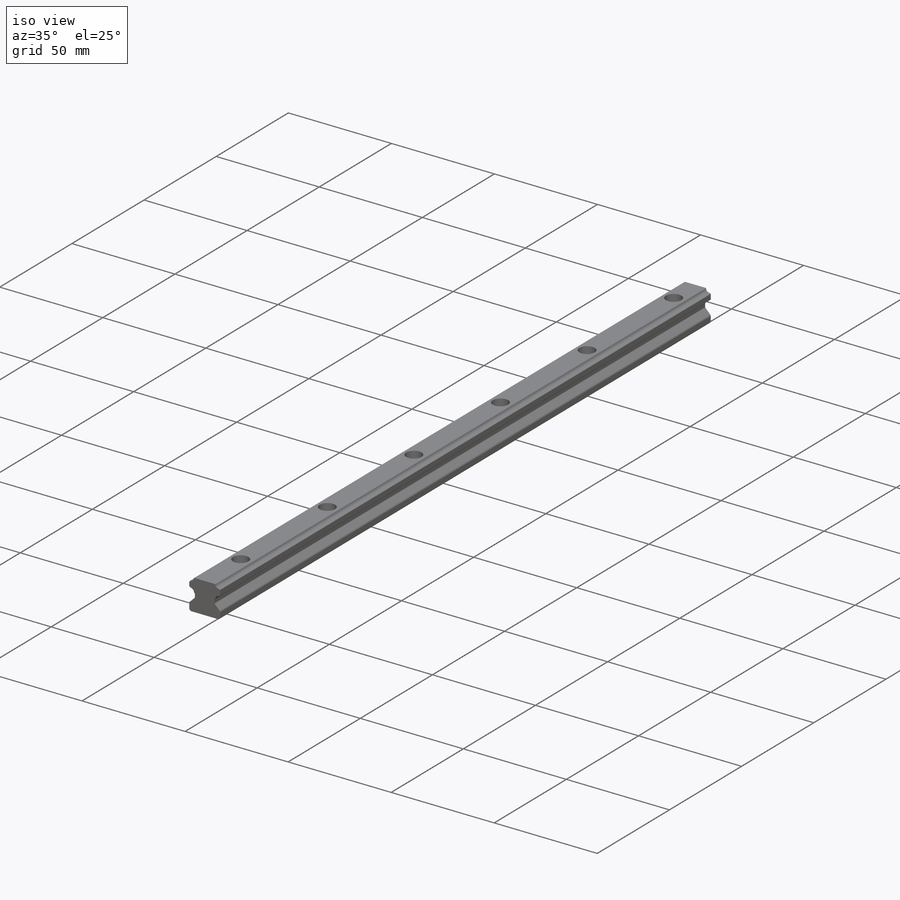
[diagram: iso view]
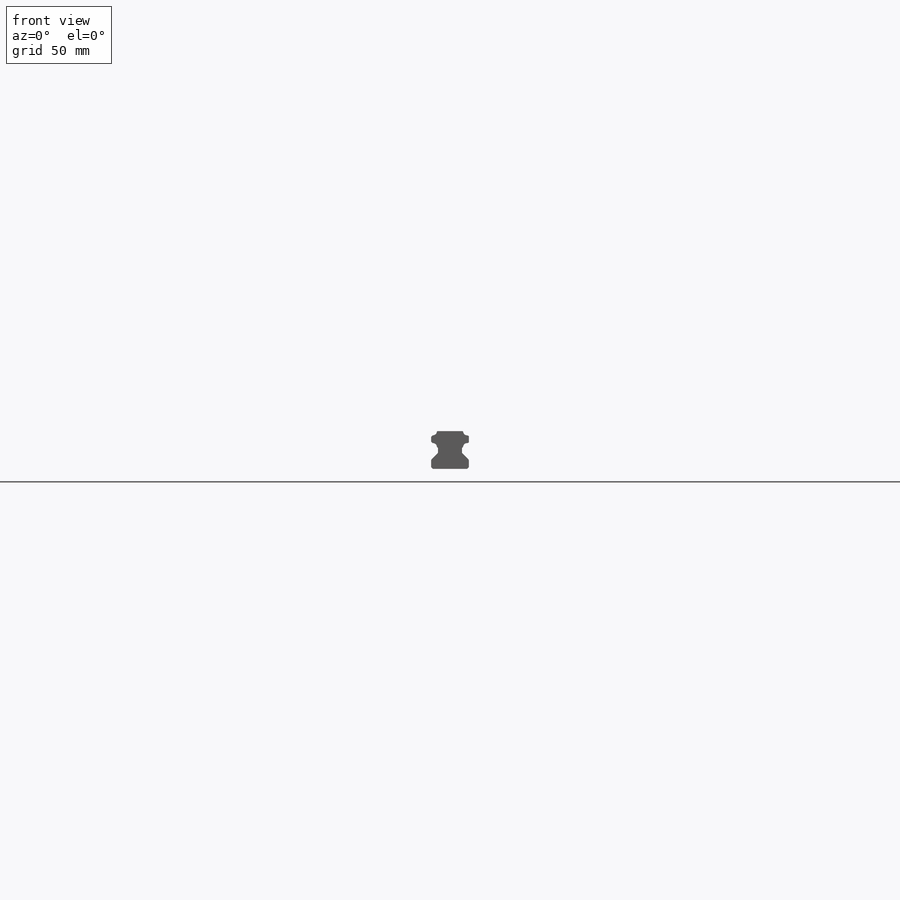
[diagram: front view]
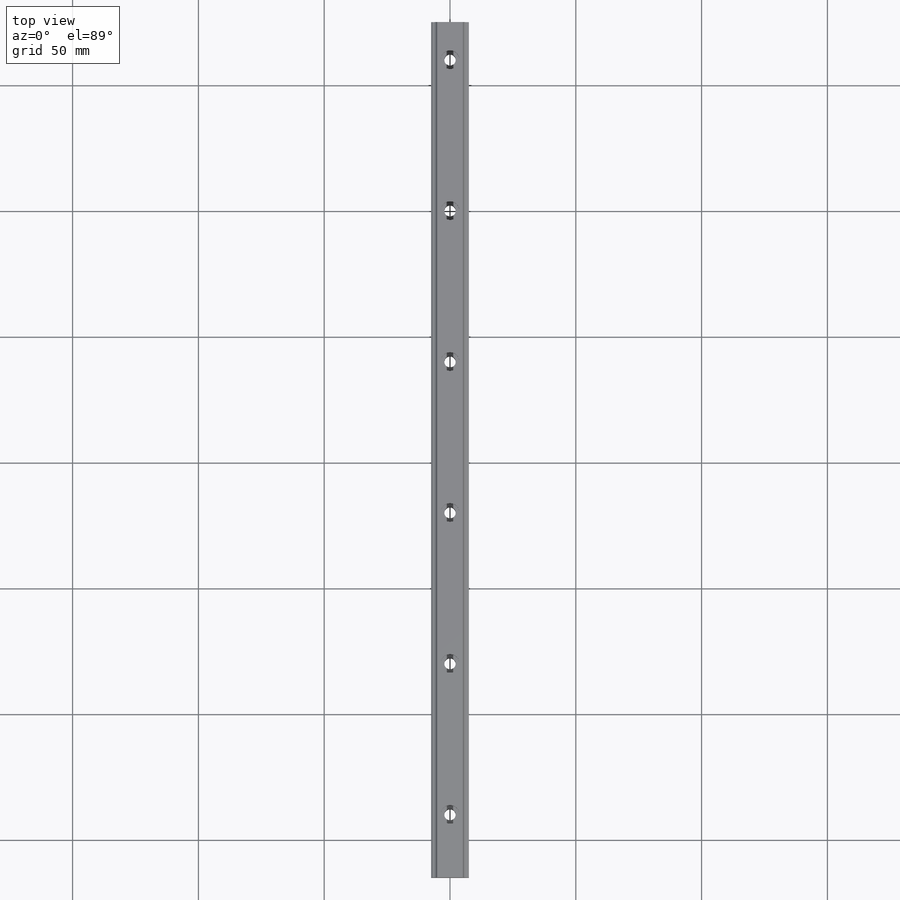
[diagram: top view]
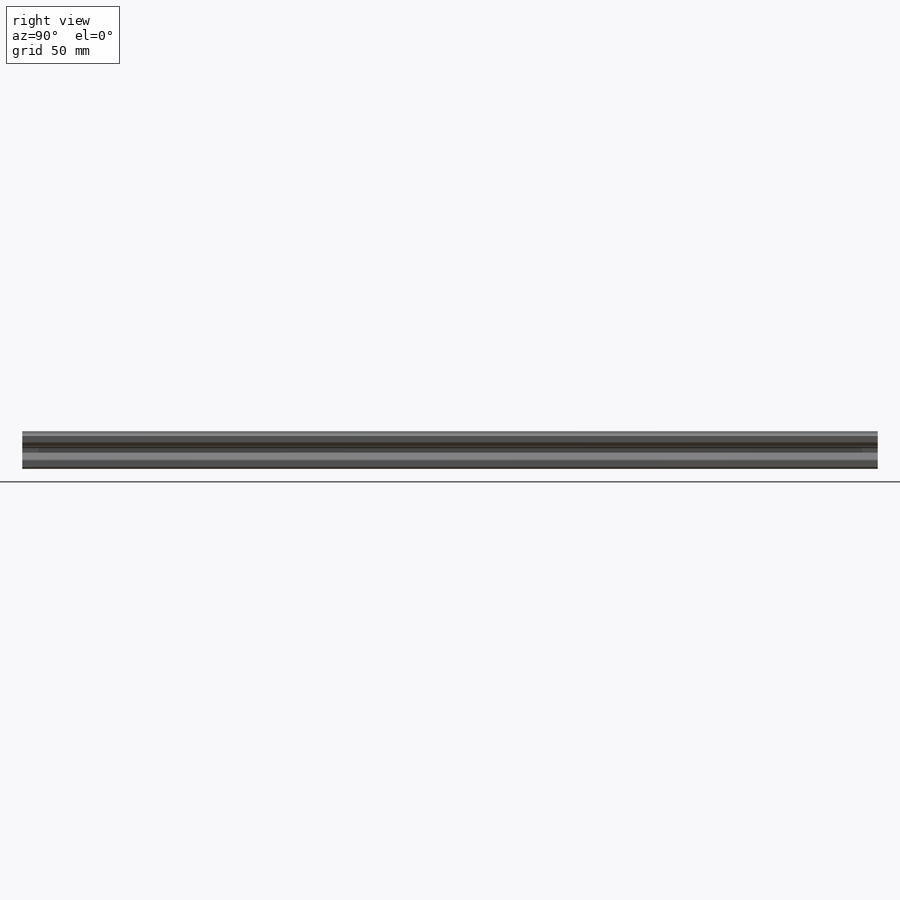
[diagram: right view]
SOLIDWORKS PART (.sldprt)
format: sldprt  version: not decoded by parser v0  size: 285,184 bytes
history: native  units: mm
features: sketch x5, plane x4, cut_extrude x2, fillet x2, material x1, extrude x1, hole x1, chamfer x1 (+9 scaffold rows collapsed)
feature tree (26):
  scaffold x9  (default folders/planes/origin — collapsed)
  material  "Материал <не указан>"
  plane  "Спереди"
  plane  "Сверху"
  plane  "Справа"
  plane  "Плоскость4"
  sketch  "Эскиз1"
  extrude  "Бобышка-Вытянуть1"  Depth=340mm
  sketch  "Эскиз2"
  cut_extrude  "Вырез-Вытянуть1"  Depth=150mm
  sketch  "Эскиз3"
  cut_extrude  "Вырез-Вытянуть2"  Depth=150mm
  hole  "Цековка для винта с заклепочной головкой M41"  [1 undecoded]
  sketch  "Эскиз5"  dims[D1=4.0]
  sketch  "Эскиз4"  dims[hole-wizard template sketch: 42 standard entries collapsed; hole parameters kept: c12.Глубина сквозного отверстия=15.0mm c12.Диаметр цековки=7.5mm c12.Глубина цековки=5.3mm]
  chamfer  "Фаска1"  Distance=0.725425mm Angle=45deg
  fillet  "Скругление1"  Radius=0.4mm
  fillet  "Скругление2"  Radius=1mm
decode coverage: 8 of 12 modeling features carry decoded parameters
note: ~ marks probable driven/reference dimensions
note: 1 parameter value undecoded
note: suppression state not decoded; provenance and decode notes live in map.json
